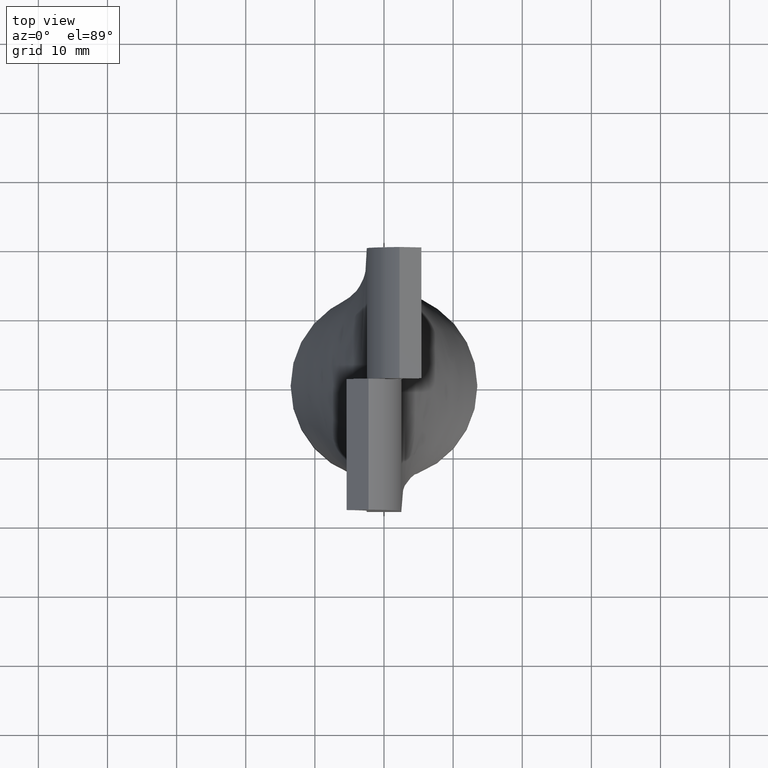
[diagram: clean part render]
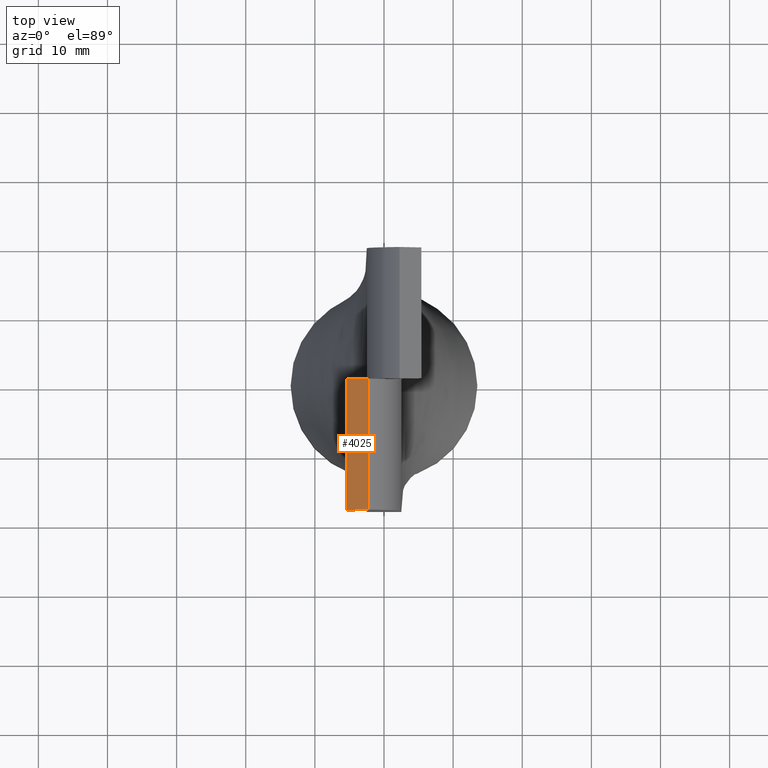
[diagram: same view with one face highlighted and labeled with its STEP entity id]
A machine part, top view. The second image highlights one B-rep face of the part: STEP entity #4025.
In plain terms, the highlighted planar face has unit normal (0.7736, 0, -0.6336).
Its self-contained STEP definition (entity closure, byte-faithful):
#45 = VERTEX_POINT ( 'NONE', #15053 ) ;
#463 = CARTESIAN_POINT ( 'NONE',  ( -5.403782845087662600, -18.99999999999999600, 91.13189752490156100 ) ) ;
#967 = ORIENTED_EDGE ( 'NONE', *, *, #8977, .T. ) ;
#1717 = LINE ( 'NONE', #463, #14290 ) ;
#1828 = EDGE_CURVE ( 'NONE', #6132, #4138, #6080, .T. ) ;
#2938 = DIRECTION ( 'NONE',  ( -1.450139787538346400E-017, -1.000000000000000000, -1.770472042666495800E-017 ) ) ;
#3027 = DIRECTION ( 'NONE',  ( 0.6336490940350670800, 0.0000000000000000000, 0.7736205954009617300 ) ) ;
#3153 = FACE_OUTER_BOUND ( 'NONE', #3356, .T. ) ;
#3225 = CARTESIAN_POINT ( 'NONE',  ( -5.403782845087662600, -0.04999999999999861500, 91.13189752490156100 ) ) ;
#3356 = EDGE_LOOP ( 'NONE', ( #5736, #967, #15541, #6479 ) ) ;
#3412 = AXIS2_PLACEMENT_3D ( 'NONE', #11027, #7343, #12318 ) ;
#3563 = PLANE ( 'NONE',  #3412 ) ;
#4025 = ADVANCED_FACE ( 'NONE', ( #3153 ), #3563, .F. ) ;
#4138 = VERTEX_POINT ( 'NONE', #13719 ) ;
#5441 = CARTESIAN_POINT ( 'NONE',  ( -2.235537374912333100, -18.99999999999999600, 95.00000050190638500 ) ) ;
#5497 = VECTOR ( 'NONE', #3027, 1000.000000000000100 ) ;
#5736 = ORIENTED_EDGE ( 'NONE', *, *, #1828, .T. ) ;
#6080 = LINE ( 'NONE', #5441, #5497 ) ;
#6132 = VERTEX_POINT ( 'NONE', #9094 ) ;
#6479 = ORIENTED_EDGE ( 'NONE', *, *, #11736, .T. ) ;
#7343 = DIRECTION ( 'NONE',  ( 0.7736205954009618400, 0.0000000000000000000, -0.6336490940350672000 ) ) ;
#8661 = EDGE_CURVE ( 'NONE', #14607, #45, #8921, .T. ) ;
#8921 = LINE ( 'NONE', #3225, #12388 ) ;
#8977 = EDGE_CURVE ( 'NONE', #4138, #14607, #13180, .T. ) ;
#9094 = CARTESIAN_POINT ( 'NONE',  ( -5.403782845087662600, -18.99999999999999600, 91.13189752490156100 ) ) ;
#11027 = CARTESIAN_POINT ( 'NONE',  ( -3.819660109999997800, 0.0000000000000000000, 93.06594901340396600 ) ) ;
#11630 = VECTOR ( 'NONE', #14448, 1000.000000000000000 ) ;
#11736 = EDGE_CURVE ( 'NONE', #45, #6132, #1717, .T. ) ;
#11881 = DIRECTION ( 'NONE',  ( -0.6336490940350669700, -8.131516293641280200E-018, -0.7736205954009618400 ) ) ;
#12318 = DIRECTION ( 'NONE',  ( -0.6336490940350670800, 0.0000000000000000000, -0.7736205954009617300 ) ) ;
#12388 = VECTOR ( 'NONE', #11881, 1000.000000000000200 ) ;
#12836 = CARTESIAN_POINT ( 'NONE',  ( -2.235537374912333100, -0.04999999999999857300, 95.00000050190638500 ) ) ;
#13150 = CARTESIAN_POINT ( 'NONE',  ( -2.235537374912333100, -0.04999999999999857300, 95.00000050190638500 ) ) ;
#13180 = LINE ( 'NONE', #13150, #11630 ) ;
#13719 = CARTESIAN_POINT ( 'NONE',  ( -2.235537374912333100, -18.99999999999999600, 95.00000050190638500 ) ) ;
#14290 = VECTOR ( 'NONE', #2938, 1000.000000000000000 ) ;
#14448 = DIRECTION ( 'NONE',  ( 8.700838725230078400E-017, 1.000000000000000000, 1.062283225599897500E-016 ) ) ;
#14607 = VERTEX_POINT ( 'NONE', #12836 ) ;
#15053 = CARTESIAN_POINT ( 'NONE',  ( -5.403782845087662600, -0.04999999999999861500, 91.13189752490156100 ) ) ;
#15541 = ORIENTED_EDGE ( 'NONE', *, *, #8661, .T. ) ;